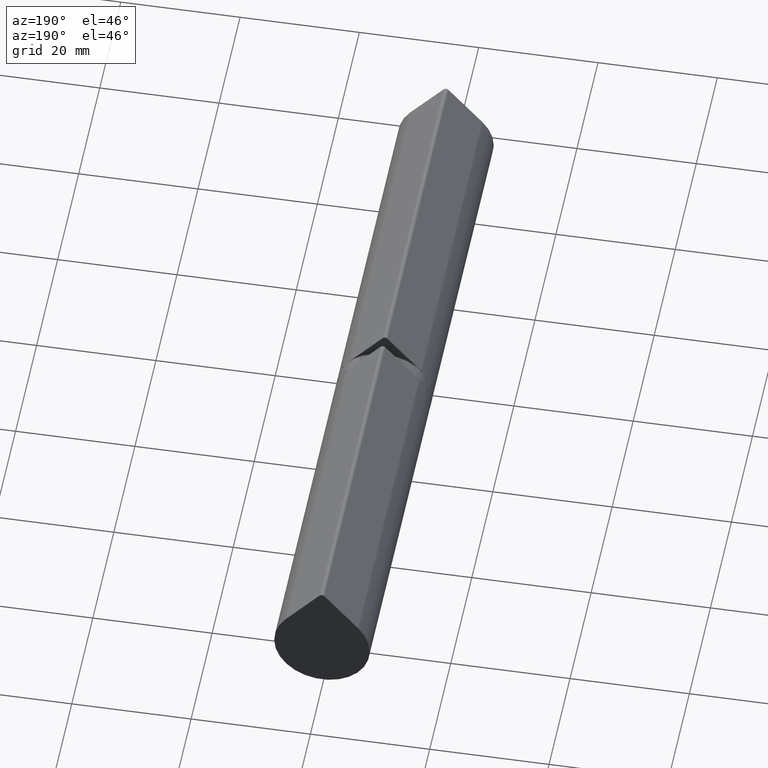
[diagram: clean part render]
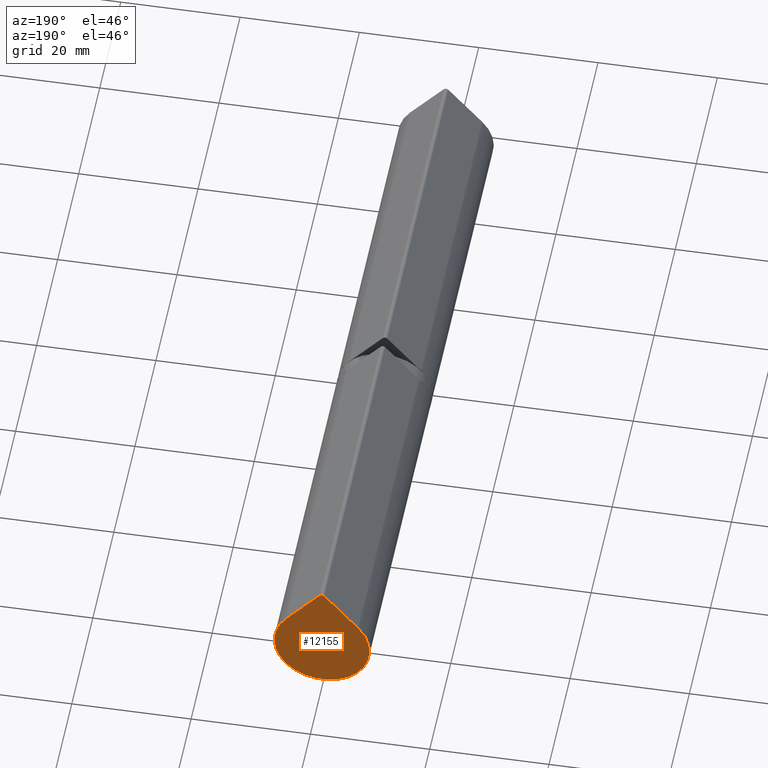
[diagram: same view with one face highlighted and labeled with its STEP entity id]
A machine part, auxiliary view. The second image highlights one B-rep face of the part: STEP entity #12155.
In plain terms, the highlighted planar face has unit normal (0, -1, 0).
Its self-contained STEP definition (entity closure, byte-faithful):
#704 = PLANE ( 'NONE',  #7746 ) ;
#757 = CARTESIAN_POINT ( 'NONE',  ( 0.000000000000000000, -29.00000000000000000, 0.000000000000000000 ) ) ;
#1563 = DIRECTION ( 'NONE',  ( 0.000000000000000000, 1.000000000000000000, 0.000000000000000000 ) ) ;
#1763 = DIRECTION ( 'NONE',  ( 0.000000000000000000, 1.000000000000000000, 0.000000000000000000 ) ) ;
#1840 = CARTESIAN_POINT ( 'NONE',  ( -0.3790346907426674350, -29.00000000000000000, 11.82608695652173658 ) ) ;
#2284 = VECTOR ( 'NONE', #3981, 1000.000000000000000 ) ;
#2432 = EDGE_CURVE ( 'NONE', #11438, #7940, #6002, .T. ) ;
#3321 = AXIS2_PLACEMENT_3D ( 'NONE', #12385, #11403, #10345 ) ;
#3674 = ORIENTED_EDGE ( 'NONE', *, *, #5002, .F. ) ;
#3981 = DIRECTION ( 'NONE',  ( 0.6521739130434782705, 0.000000000000000000, -0.7580693814853345369 ) ) ;
#4102 = VERTEX_POINT ( 'NONE', #13052 ) ;
#5002 = EDGE_CURVE ( 'NONE', #8315, #4102, #10277, .T. ) ;
#5150 = DIRECTION ( 'NONE',  ( 0.6521739130434782705, 0.000000000000000000, 0.7580693814853345369 ) ) ;
#5732 = AXIS2_PLACEMENT_3D ( 'NONE', #7658, #1563, #7568 ) ;
#6002 = CIRCLE ( 'NONE', #5732, 0.4999999999999987232 ) ;
#6132 = ORIENTED_EDGE ( 'NONE', *, *, #10326, .F. ) ;
#6564 = FACE_OUTER_BOUND ( 'NONE', #12806, .T. ) ;
#6746 = LINE ( 'NONE', #9222, #2284 ) ;
#6822 = CARTESIAN_POINT ( 'NONE',  ( 0.3790346907426672685, -29.00000000000000000, 11.82608695652173658 ) ) ;
#7354 = EDGE_CURVE ( 'NONE', #4102, #11438, #10289, .T. ) ;
#7373 = ORIENTED_EDGE ( 'NONE', *, *, #7354, .F. ) ;
#7568 = DIRECTION ( 'NONE',  ( 0.000000000000000000, 0.000000000000000000, 1.000000000000000000 ) ) ;
#7658 = CARTESIAN_POINT ( 'NONE',  ( 0.000000000000000000, -29.00000000000000000, 11.50000000000000000 ) ) ;
#7746 = AXIS2_PLACEMENT_3D ( 'NONE', #757, #1763, #7967 ) ;
#7940 = VERTEX_POINT ( 'NONE', #6822 ) ;
#7967 = DIRECTION ( 'NONE',  ( 0.000000000000000000, -0.000000000000000000, 1.000000000000000000 ) ) ;
#8315 = VERTEX_POINT ( 'NONE', #11337 ) ;
#9222 = CARTESIAN_POINT ( 'NONE',  ( 0.3790346907426672685, -29.00000000000000000, 11.82608695652173658 ) ) ;
#9331 = VECTOR ( 'NONE', #5150, 1000.000000000000000 ) ;
#10237 = CARTESIAN_POINT ( 'NONE',  ( -6.064555051882675407, -29.00000000000000000, 5.217391304347824388 ) ) ;
#10277 = CIRCLE ( 'NONE', #3321, 7.999999999999998224 ) ;
#10289 = LINE ( 'NONE', #10237, #9331 ) ;
#10326 = EDGE_CURVE ( 'NONE', #7940, #8315, #6746, .T. ) ;
#10345 = DIRECTION ( 'NONE',  ( 0.000000000000000000, 0.000000000000000000, 1.000000000000000000 ) ) ;
#10847 = ORIENTED_EDGE ( 'NONE', *, *, #2432, .F. ) ;
#11337 = CARTESIAN_POINT ( 'NONE',  ( 6.064555051882675407, -29.00000000000000000, 5.217391304347824388 ) ) ;
#11403 = DIRECTION ( 'NONE',  ( 0.000000000000000000, 1.000000000000000000, 0.000000000000000000 ) ) ;
#11438 = VERTEX_POINT ( 'NONE', #1840 ) ;
#12155 = ADVANCED_FACE ( 'NONE', ( #6564 ), #704, .F. ) ;
#12385 = CARTESIAN_POINT ( 'NONE',  ( 0.000000000000000000, -29.00000000000000000, 0.000000000000000000 ) ) ;
#12806 = EDGE_LOOP ( 'NONE', ( #3674, #6132, #10847, #7373 ) ) ;
#13052 = CARTESIAN_POINT ( 'NONE',  ( -6.064555051882675407, -29.00000000000000000, 5.217391304347824388 ) ) ;